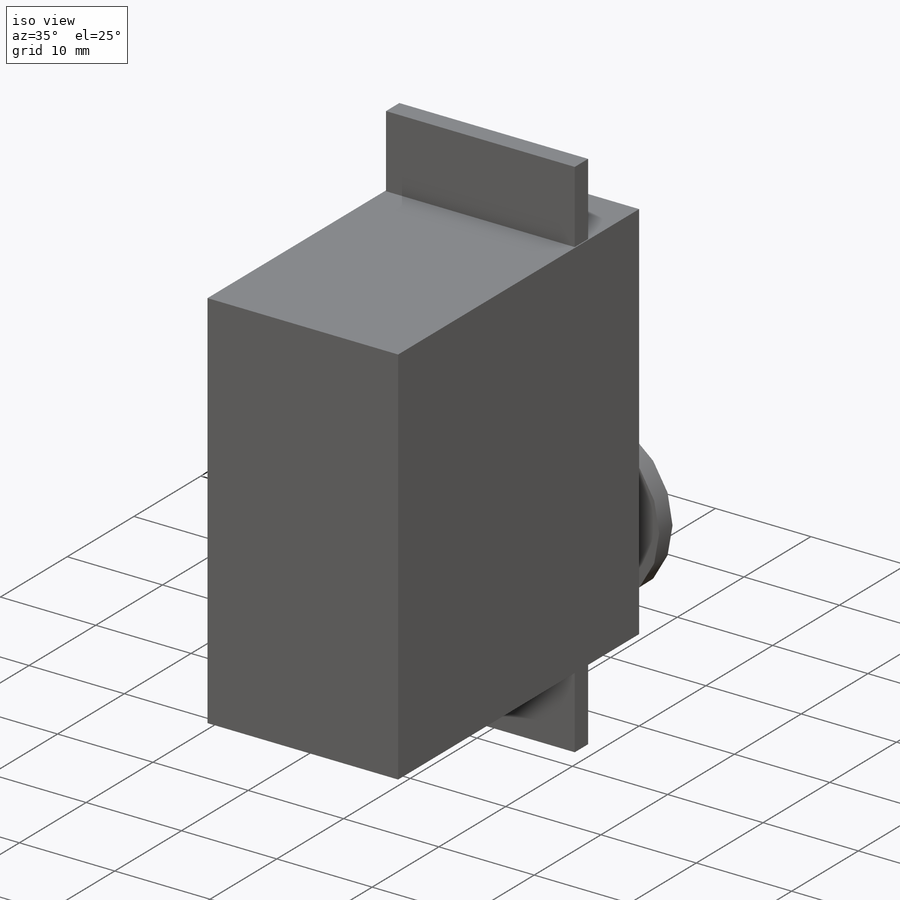
[diagram: iso view]
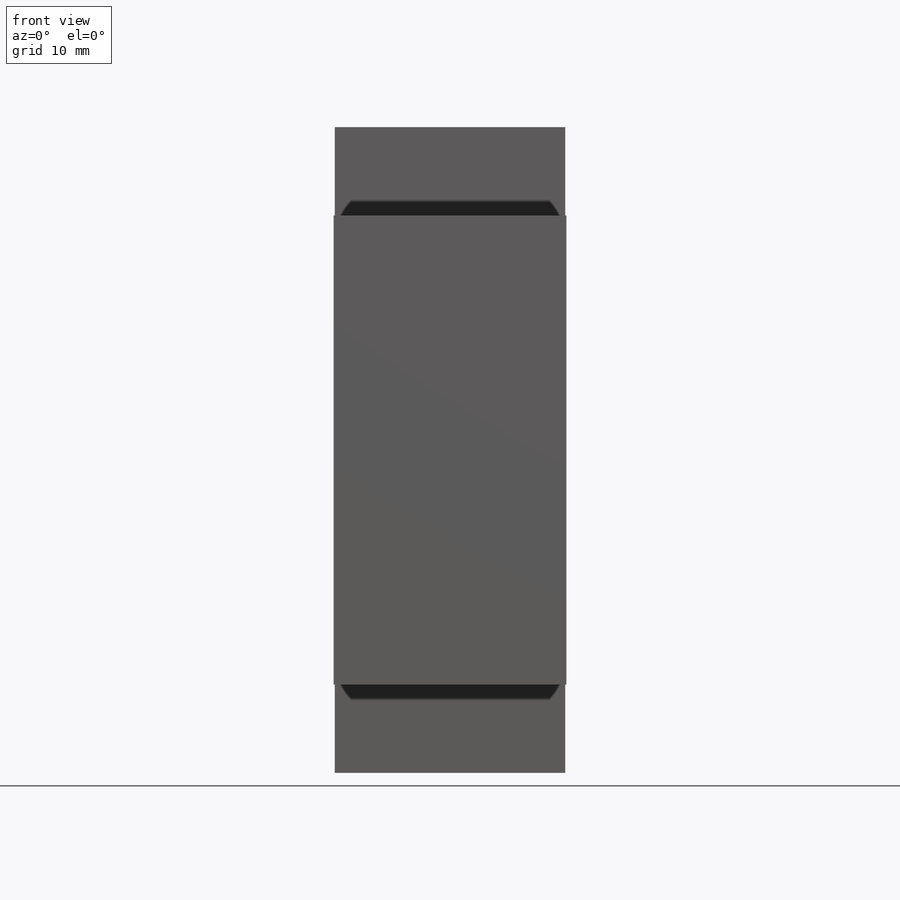
[diagram: front view]
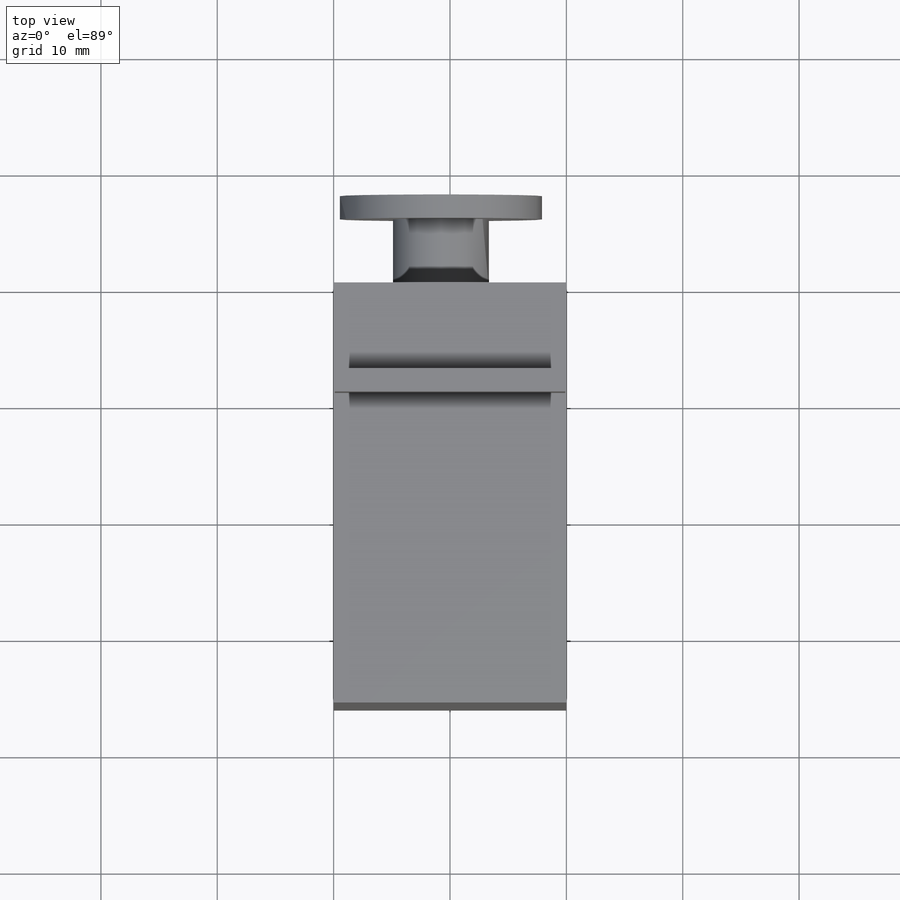
[diagram: top view]
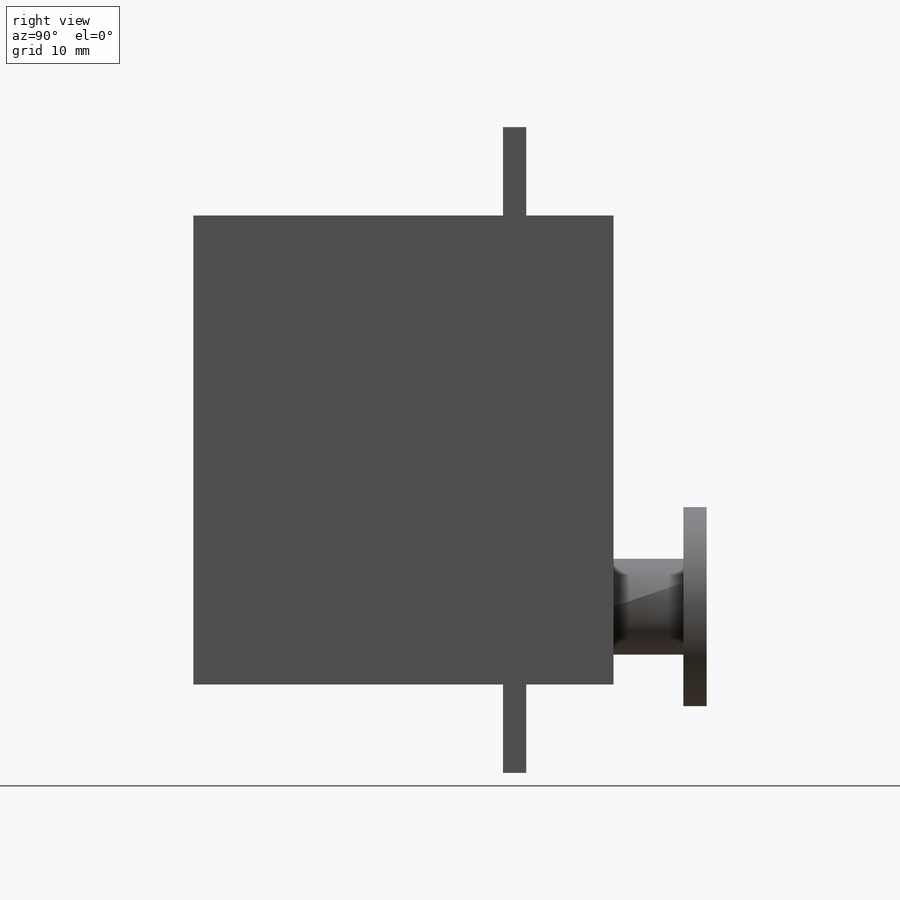
[diagram: right view]
SOLIDWORKS PART (.sldprt)
format: sldprt  version: not decoded by parser v0  size: 164,864 bytes
history: native  units: mm
features: sketch x5, extrude x5, plane x4, material x1 (+8 scaffold rows collapsed)
feature tree (23):
  scaffold x8  (default folders/planes/origin — collapsed)
  material  "Matériau <non spécifié>"
  plane  "XY"
  plane  "XZ"
  plane  "YZ"
  sketch  "Esquisse1"  dims[D1=20.0mm D2=40.3mm]
  extrude  "Boss.-Extru.1"  Depth=36.1mm
  plane  "Plan1"
  sketch  "Esquisse3"  dims[D1=26.6mm D2=19.8mm D3=0.1mm D4=2.0mm]
  extrude  "Boss.-Extru.3"  Depth=7.6mm
  sketch  "Esquisse5"  dims[D1=19.8mm]
  extrude  "Boss.-Extru.4"  Depth=7.6mm
  sketch  "Esquisse6"  dims[D1=8.0mm D2=13.5mm]
  extrude  "Boss.-Extru.5"  Depth=8mm
  sketch  "Esquisse7"
  extrude  "Boss.-Extru.6"  Depth=2mm
decode coverage: 9 of 10 modeling features carry decoded parameters
note: suppression state not decoded; provenance and decode notes live in map.json
